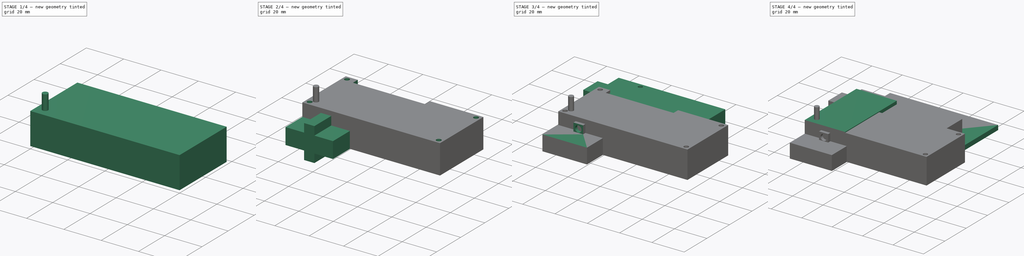
[diagram: build sequence overview — one tinted view per stage of 4, left to right]
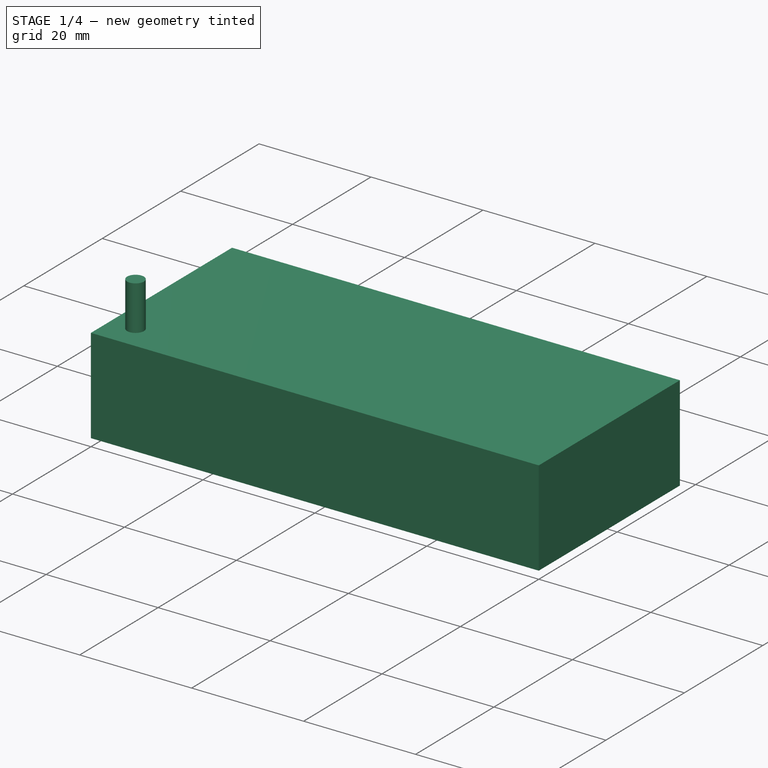
[diagram: stage 1 of 4 — iso view after this stage's code; geometry added in this stage tinted green]
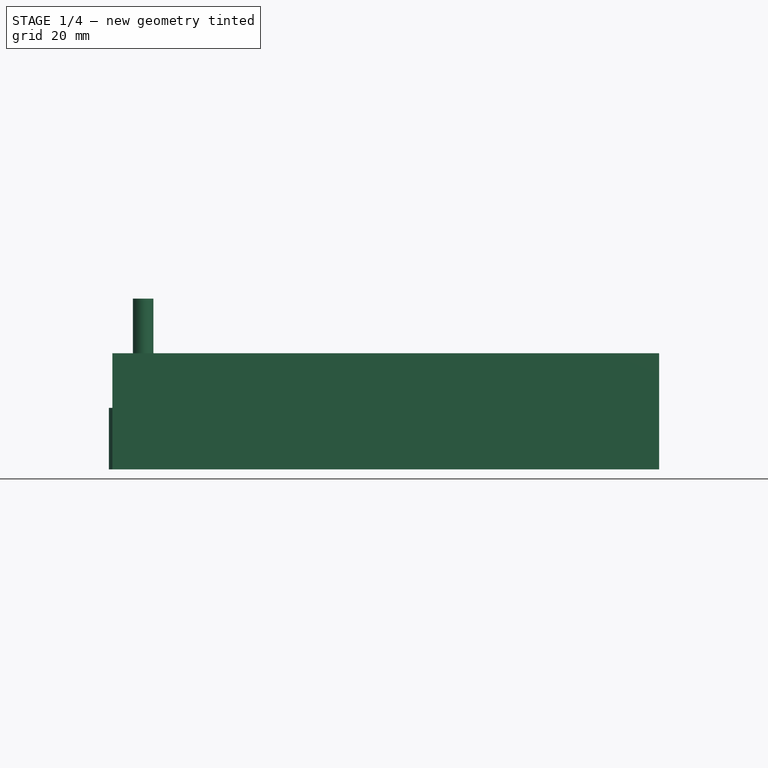
[diagram: stage 1 of 4 — front view after this stage's code; geometry added in this stage tinted green]
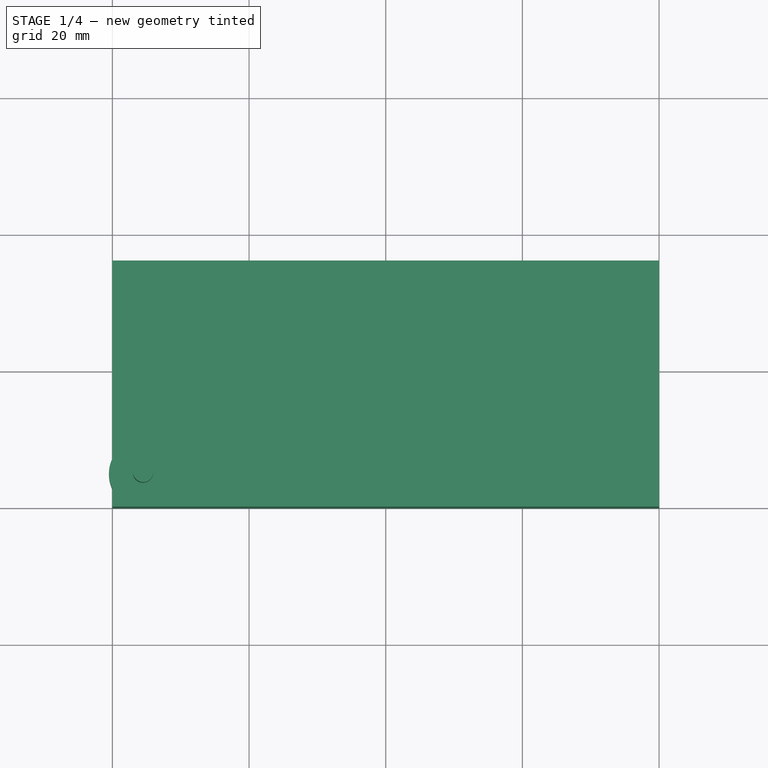
[diagram: stage 1 of 4 — top view after this stage's code; geometry added in this stage tinted green]
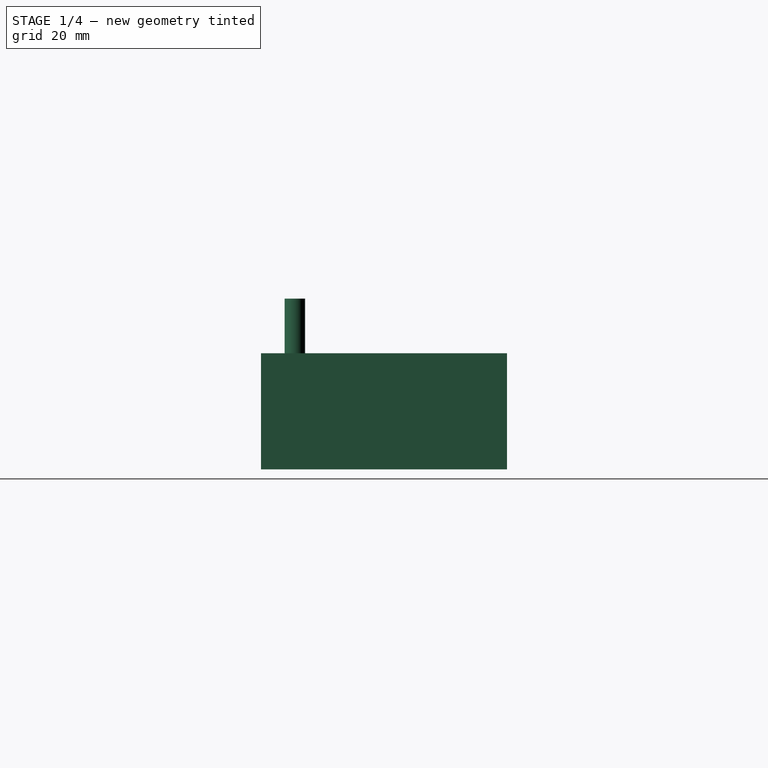
[diagram: stage 1 of 4 — right view after this stage's code; geometry added in this stage tinted green]
FCSTD DOCUMENT  (FreeCAD 1.0R39109 (Git))
Label: Electronic_parts
License: All rights reserved
LicenseURL: https://en.wikipedia.org/wiki/All_rights_reserved
objects: Sketcher::SketchObject×10, PartDesign::Pad×9, PartDesign::Body×6, PartDesign::Pocket×4
note: 65 computed .brp shape members not serialized (recipe doc carries the construction recipe); baked Part::Feature solids carry a one-line shape summary decoded from their .brp

FEATURE [PartDesign::Body] Body004  label="power_switch"
  AllowCompound = false
  Group = -> [Sketch005,Pad006,Sketch006,Pocket,Pocket001]
  Origin = -> Origin004
  Tip = -> Pocket001
FEATURE [Sketcher::SketchObject] Sketch002
  ArcFitTolerance = 1e-06
  AttachmentSupport = -> [XY_Plane002]
  FullyConstrained = true
  MakeInternals = false
  MapMode = 5
  sketch-geometry (4):
    g0: LineSegment StartX=0 StartY=0 StartZ=0 EndX=80 EndY=0 EndZ=0
    g1: LineSegment StartX=80 StartY=0 StartZ=0 EndX=80 EndY=36 EndZ=0
    g2: LineSegment StartX=80 StartY=36 StartZ=0 EndX=0 EndY=36 EndZ=0
    g3: LineSegment StartX=0 StartY=36 StartZ=0 EndX=0 EndY=0 EndZ=0
  constraints (11):
    c: Coincident(g0,g1)
    c: Coincident(g1,g2)
    c: Coincident(g2,g3)
    c: Coincident(g3,g0)
    c: Horizontal(g0)
    c: Horizontal(g2)
    c: Vertical(g1)
    c: Vertical(g3)
    c: Coincident(g0,g-1)
    c: DistanceX(g2,g2) = 80
    c: DistanceY(g1,g1) = 36
FEATURE [PartDesign::Pad] Pad002
  Direction = (0,0,1)
  Length = 17
  Length2 = 10
  Profile = -> Sketch002
  ReferenceAxis = -> Sketch002 [N_Axis]
  Refine = true
  Suppressed = false
  Type = 0
FEATURE [PartDesign::Body] Body002  label="Display"
  AllowCompound = false
  Group = -> [Sketch002,Pad002,Sketch007,Pocket002,Pocket003]
  Origin = -> Origin002
  Tip = -> Pocket003
FEATURE [Sketcher::SketchObject] Sketch008
  ArcFitTolerance = 1e-06
  AttachmentSupport = -> [XY_Plane005]
  FullyConstrained = false
  MakeInternals = false
  MapMode = 5
  sketch-geometry (7):
    g0: ArcOfCircle CenterX=4.5 CenterY=4.95 CenterZ=0 NormalX=0 NormalY=0 NormalZ=1 AngleXU=0 Radius=5.00461 StartAngle=5.83026 EndAngle=9.8777
    g1: LineSegment StartX=0 StartY=2.76 StartZ=0 EndX=0 EndY=0 EndZ=0
    g2: LineSegment StartX=0 StartY=0 StartZ=0 EndX=9 EndY=0 EndZ=0
    g3: LineSegment StartX=9 StartY=0 StartZ=0 EndX=9 EndY=2.76 EndZ=0
    g4: LineSegment [constr] StartX=-0.625057 StartY=10 StartZ=0 EndX=12.7957 EndY=10 EndZ=0
    g5: LineSegment [constr] StartX=-0.511317 StartY=11.1307 StartZ=0 EndX=-0.511317 EndY=0 EndZ=0
    g6: LineSegment [constr] StartX=9.48868 StartY=10.8826 StartZ=0 EndX=9.48868 EndY=0 EndZ=0
  constraints (20):
    c: Horizontal(g0,g0)
    c: Coincident(g1,g2)
    c: Coincident(g2,g3)
    c: Vertical(g1)
    c: Vertical(g3)
    c: Horizontal(g2)
    c: DistanceX(g2,g2) = 9
    c: Horizontal(g4)
    c: Distance(g2,g4) = 10
    c: Coincident(g1,g-1)
    c: Horizontal(g1,g3)
    c: Coincident(g0,g3)
    c: Vertical(g0,g1)
    c: PointOnObject(g5,g-1)
    c: Vertical(g5)
    c: PointOnObject(g6,g-1)
    c: Vertical(g6)
    c: DistanceX(g5,g6) = 10
    c: DistanceY(g-1,g0) = 2.76
    c: DistanceY(g-1,g0) = 4.95
FEATURE [PartDesign::Pad] Pad007
  Direction = (0,0,1)
  Length = 9
  Length2 = 10
  Profile = -> Sketch008
  ReferenceAxis = -> Sketch008 [N_Axis]
  Refine = true
  Suppressed = false
  Type = 0
FEATURE [Sketcher::SketchObject] Sketch009
  ArcFitTolerance = 1e-06
  AttachmentSupport = -> [Pad007]
  ExternalGeometry = -> [Pad007]
  FullyConstrained = true
  MakeInternals = false
  MapMode = 5
  Placement = pos=(0,0,9) rot=(0,0,1;0rad)
  sketch-geometry (1):
    g0: Circle CenterX=4.5 CenterY=4.95 CenterZ=0 NormalX=0 NormalY=0 NormalZ=1 AngleXU=0 Radius=1.5
  constraints (2):
    c: Coincident(g0,g-3)
    c: Radius(g0) = 1.5
FEATURE [PartDesign::Pad] Pad008
  BaseFeature = -> Pad007
  Direction = (0,0,1)
  Length = 16
  Length2 = 10
  Profile = -> Sketch009
  ReferenceAxis = -> Sketch009 [N_Axis]
  Refine = true
  Suppressed = false
  Type = 0
FEATURE [PartDesign::Body] Body005  label="poti"
  AllowCompound = false
  Group = -> [Sketch008,Pad007,Sketch009,Pad008]
  Origin = -> Origin005
  Tip = -> Pad008
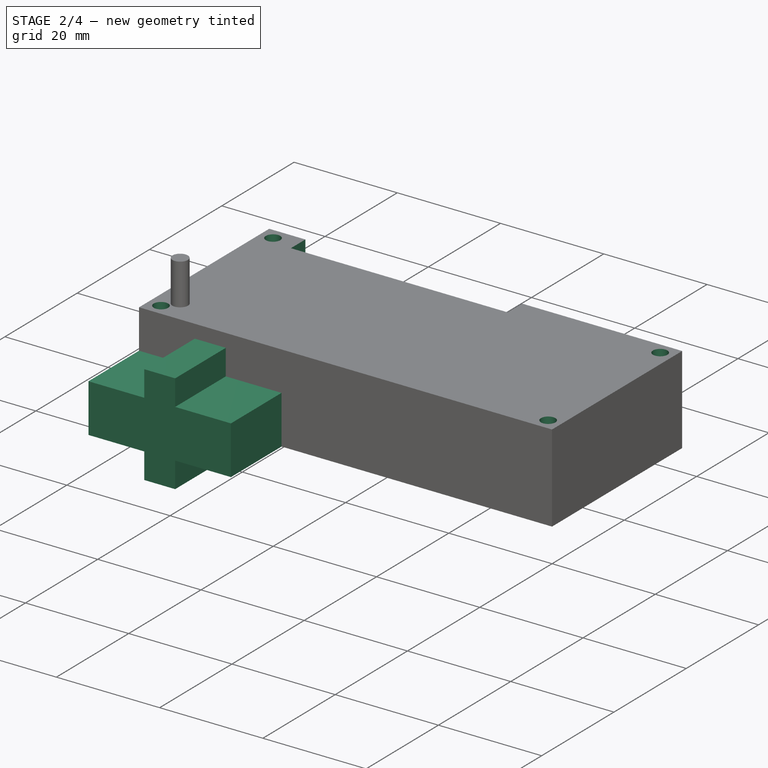
[diagram: stage 2 of 4 — iso view after this stage's code; geometry added in this stage tinted green]
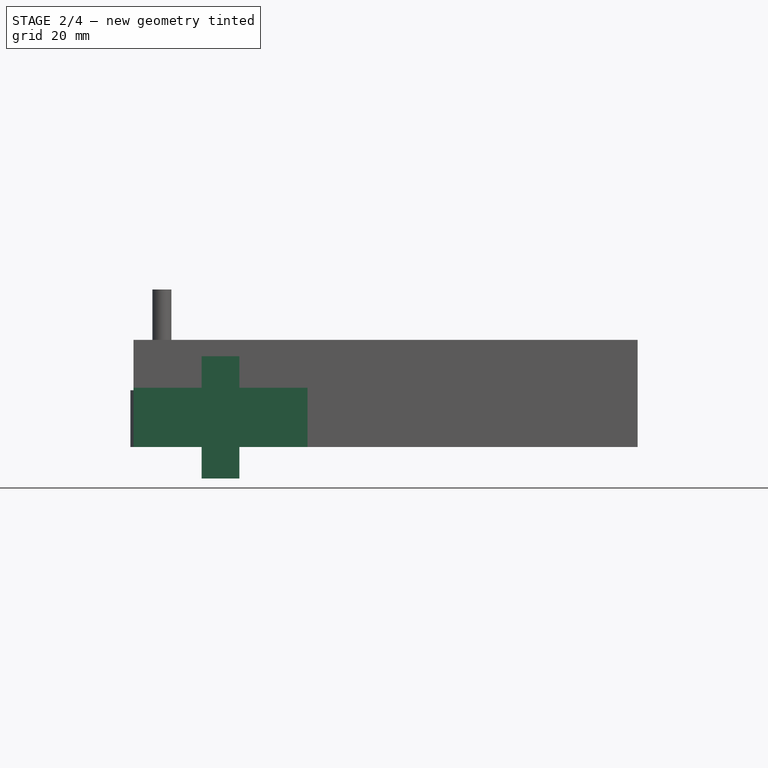
[diagram: stage 2 of 4 — front view after this stage's code; geometry added in this stage tinted green]
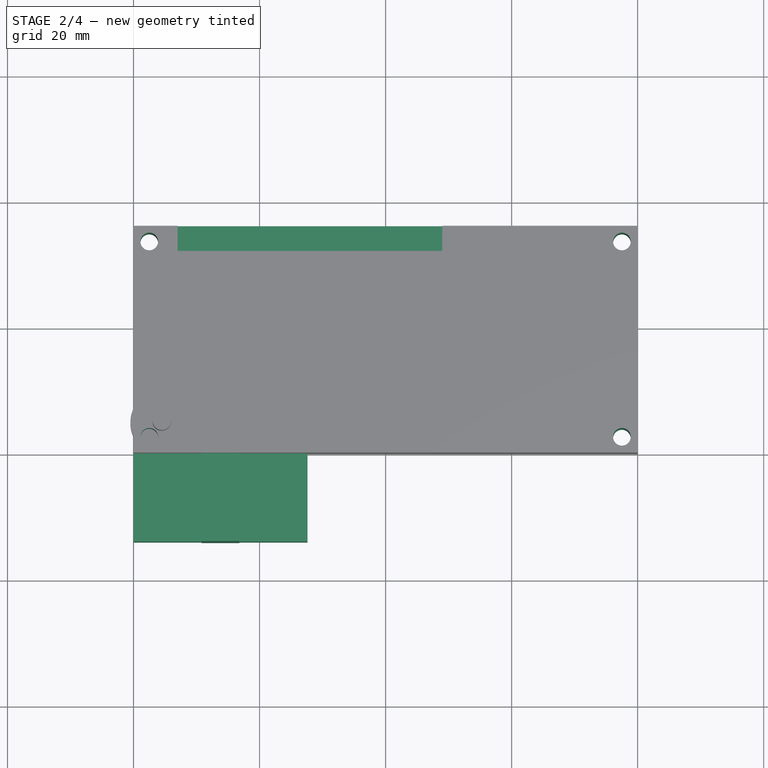
[diagram: stage 2 of 4 — top view after this stage's code; geometry added in this stage tinted green]
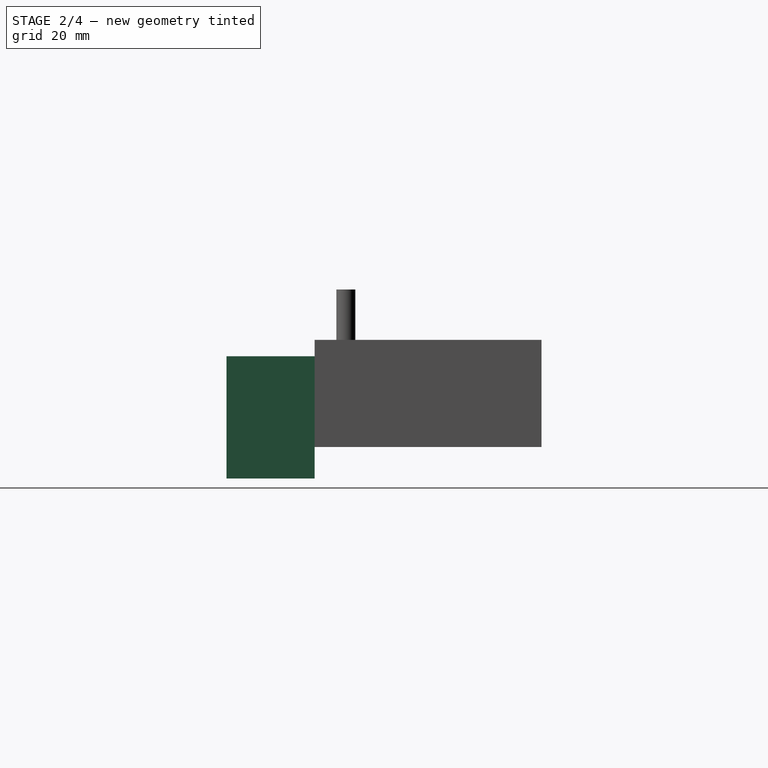
[diagram: stage 2 of 4 — right view after this stage's code; geometry added in this stage tinted green]
FEATURE [PartDesign::Body] Body003  label="Eleego"
  AllowCompound = false
  Group = -> [Sketch003,Pad003,Sketch004,Pad004,Pad005]
  Origin = -> Origin003
  Tip = -> Pad005
FEATURE [Sketcher::SketchObject] Sketch005
  ArcFitTolerance = 1e-06
  AttachmentSupport = -> [XZ_Plane004]
  FullyConstrained = true
  MakeInternals = false
  MapMode = 5
  Placement = pos=(0,0,0) rot=(1,0,0;1.5708rad)
  sketch-geometry (12):
    g0: LineSegment StartX=0 StartY=9.4 StartZ=0 EndX=10.8 EndY=9.4 EndZ=0
    g1: LineSegment StartX=10.8 StartY=9.4 StartZ=0 EndX=10.8 EndY=14.4 EndZ=0
    g2: LineSegment StartX=10.8 StartY=14.4 StartZ=0 EndX=16.8 EndY=14.4 EndZ=0
    g3: LineSegment StartX=16.8 StartY=14.4 StartZ=0 EndX=16.8 EndY=9.4 EndZ=0
    g4: LineSegment StartX=16.8 StartY=9.4 StartZ=0 EndX=27.6 EndY=9.4 EndZ=0
    g5: LineSegment StartX=27.6 StartY=9.4 StartZ=0 EndX=27.6 EndY=0 EndZ=0
    g6: LineSegment StartX=27.6 StartY=0 StartZ=0 EndX=16.8 EndY=0 EndZ=0
    g7: LineSegment StartX=16.8 StartY=0 StartZ=0 EndX=16.8 EndY=-5 EndZ=0
    g8: LineSegment StartX=16.8 StartY=-5 StartZ=0 EndX=10.8 EndY=-5 EndZ=0
    g9: LineSegment StartX=10.8 StartY=-5 StartZ=0 EndX=10.8 EndY=0 EndZ=0
    g10: LineSegment StartX=10.8 StartY=0 StartZ=0 EndX=0 EndY=0 EndZ=0
    g11: LineSegment StartX=0 StartY=0 StartZ=0 EndX=0 EndY=9.4 EndZ=0
  constraints (36):
    c: PointOnObject(g0,g-2)
    c: Horizontal(g0)
    c: Coincident(g0,g1)
    c: Vertical(g1)
    c: Coincident(g1,g2)
    c: Horizontal(g2)
    c: Coincident(g2,g3)
    c: Vertical(g3)
    c: Coincident(g3,g4)
    c: Horizontal(g4)
    c: Coincident(g4,g5)
    c: Vertical(g5)
    c: Coincident(g5,g6)
    c: Horizontal(g6)
    c: Coincident(g6,g7)
    c: Vertical(g7)
    c: Coincident(g7,g8)
    c: Horizontal(g8)
    c: Coincident(g8,g9)
    c: Vertical(g9)
    c: Coincident(g9,g10)
    c: PointOnObject(g10,g-2)
    c: Horizontal(g10)
    c: Coincident(g10,g11)
    c: Coincident(g11,g0)
    c: Vertical(g0,g9)
    c: Vertical(g3,g6)
    c: Horizontal(g6,g9)
    c: Horizontal(g0,g3)
    c: Distance(g8,g2) = 19.4
    c: DistanceX(g2,g2) = 6
    c: Distance(g11,g5) = 27.6
    c: Equal(g4,g0)
    c: Equal(g9,g1)
    c: DistanceY(g11,g11) = 9.4
    c: Horizontal(g10,g-1)
FEATURE [PartDesign::Pad] Pad006
  Direction = (0,-1,2e-16)
  Length = 14
  Length2 = 10
  Placement = pos=(0,0,0) rot=(1,0,0;1.5708rad)
  Profile = -> Sketch005
  ReferenceAxis = -> Sketch005 [N_Axis]
  Refine = true
  Suppressed = false
  Type = 0
FEATURE [Sketcher::SketchObject] Sketch007
  ArcFitTolerance = 1e-06
  AttachmentSupport = -> [Pad002]
  ExternalGeometry = -> [Pad002]
  FullyConstrained = true
  MakeInternals = false
  MapMode = 5
  Placement = pos=(0,0,17) rot=(0,0,1;0rad)
  sketch-geometry (8):
    g0: Circle CenterX=2.5 CenterY=33.5 CenterZ=0 NormalX=0 NormalY=0 NormalZ=1 AngleXU=0 Radius=1.4
    g1: Circle CenterX=77.5 CenterY=33.5 CenterZ=0 NormalX=0 NormalY=0 NormalZ=1 AngleXU=0 Radius=1.4
    g2: Circle CenterX=2.5 CenterY=2.5 CenterZ=0 NormalX=0 NormalY=0 NormalZ=1 AngleXU=0 Radius=1.4
    g3: Circle CenterX=77.5 CenterY=2.5 CenterZ=0 NormalX=0 NormalY=0 NormalZ=1 AngleXU=0 Radius=1.4
    g4: LineSegment StartX=7 StartY=36 StartZ=0 EndX=7 EndY=32 EndZ=0
    g5: LineSegment StartX=7 StartY=32 StartZ=0 EndX=49 EndY=32 EndZ=0
    g6: LineSegment StartX=49 StartY=32 StartZ=0 EndX=49 EndY=36 EndZ=0
    g7: LineSegment StartX=49 StartY=36 StartZ=0 EndX=7 EndY=36 EndZ=0
  constraints (24):
    c: Radius(g3) = 1.4
    c: Equal(g1,g3)
    c: Equal(g3,g0)
    c: Equal(g0,g2)
    c: Distance(g0,g-3) = 2.5
    c: Distance(g0,g-6) = 2.5
    c: Distance(g1,g-3) = 2.5
    c: Distance(g1,g-4) = 2.5
    c: Distance(g3,g-4) = 2.5
    c: Distance(g3,g-5) = 2.5
    c: Distance(g2,g-5) = 2.5
    c: Distance(g2,g-6) = 2.5
    c: Coincident(g4,g5)
    c: Coincident(g5,g6)
    c: Coincident(g6,g7)
    c: Coincident(g7,g4)
    c: Vertical(g4)
    c: Vertical(g6)
    c: Horizontal(g5)
    c: Horizontal(g7)
    c: PointOnObject(g4,g-3)
    c: DistanceX(g7,g7) = 42
    c: Distance(g-6,g4) = 7
    c: Distance(g6,g6) = 4
FEATURE [PartDesign::Pocket] Pocket002
  BaseFeature = -> Pad002
  Direction = (0,0,-1)
  Length = 5
  Length2 = 5
  Profile = -> Sketch007 [Edge8,Edge7,Edge6,Edge5]
  ReferenceAxis = -> Sketch007 [N_Axis]
  Refine = true
  Suppressed = false
  Type = 0
FEATURE [PartDesign::Pocket] Pocket003
  BaseFeature = -> Pocket002
  Direction = (0,0,-1)
  Length = 0
  Length2 = 5
  Profile = -> Sketch007 [Edge2,Edge4,Edge3,Edge1]
  ReferenceAxis = -> Sketch007 [N_Axis]
  Refine = true
  Suppressed = false
  Type = 3
  UpToFace = -> Pocket002 [Face4]
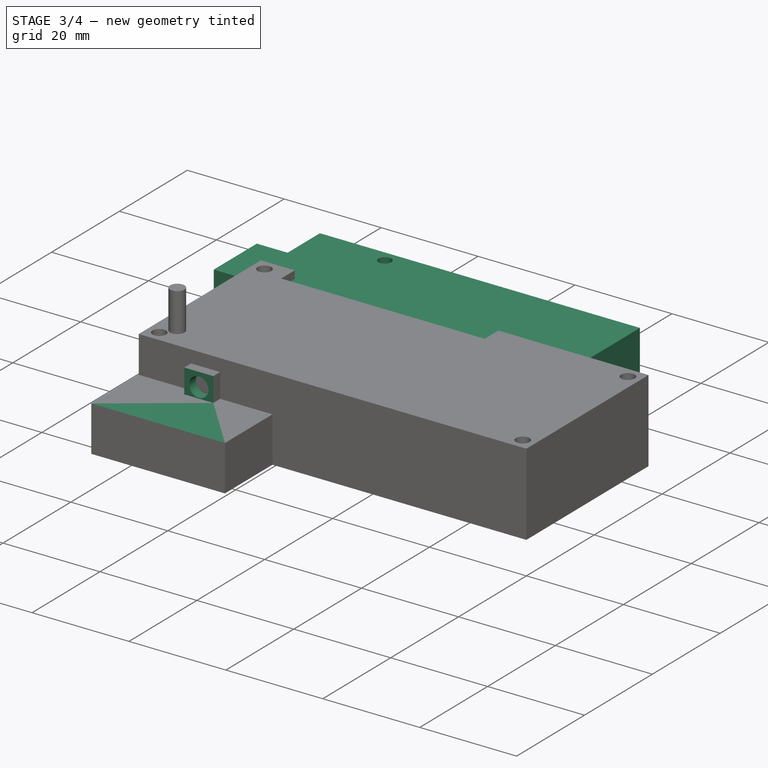
[diagram: stage 3 of 4 — iso view after this stage's code; geometry added in this stage tinted green]
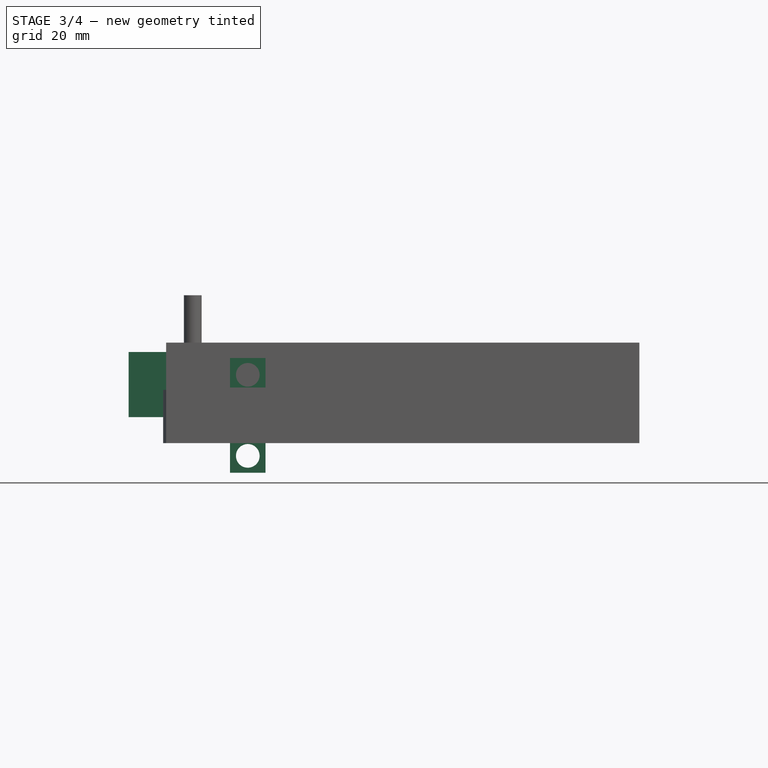
[diagram: stage 3 of 4 — front view after this stage's code; geometry added in this stage tinted green]
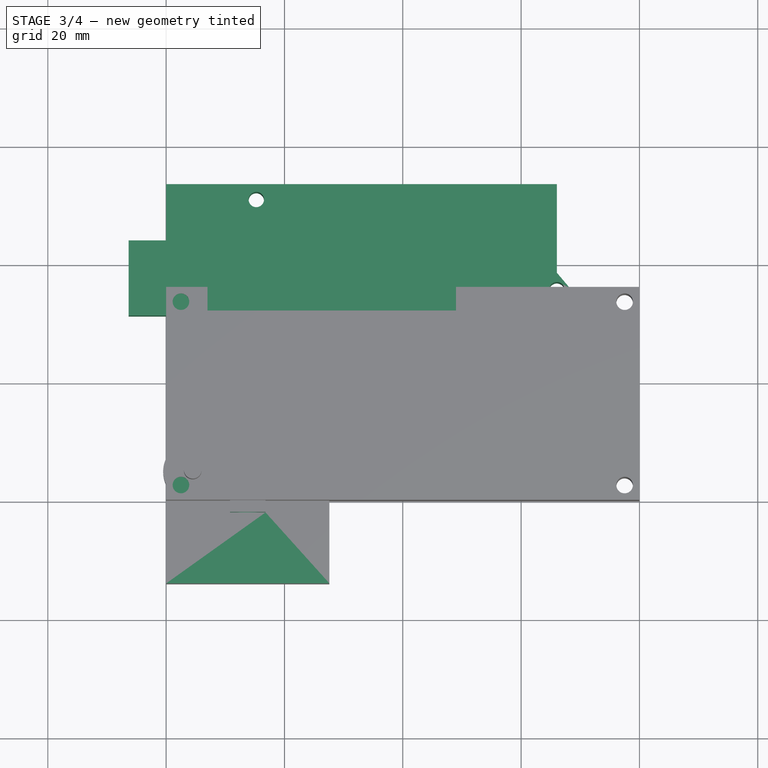
[diagram: stage 3 of 4 — top view after this stage's code; geometry added in this stage tinted green]
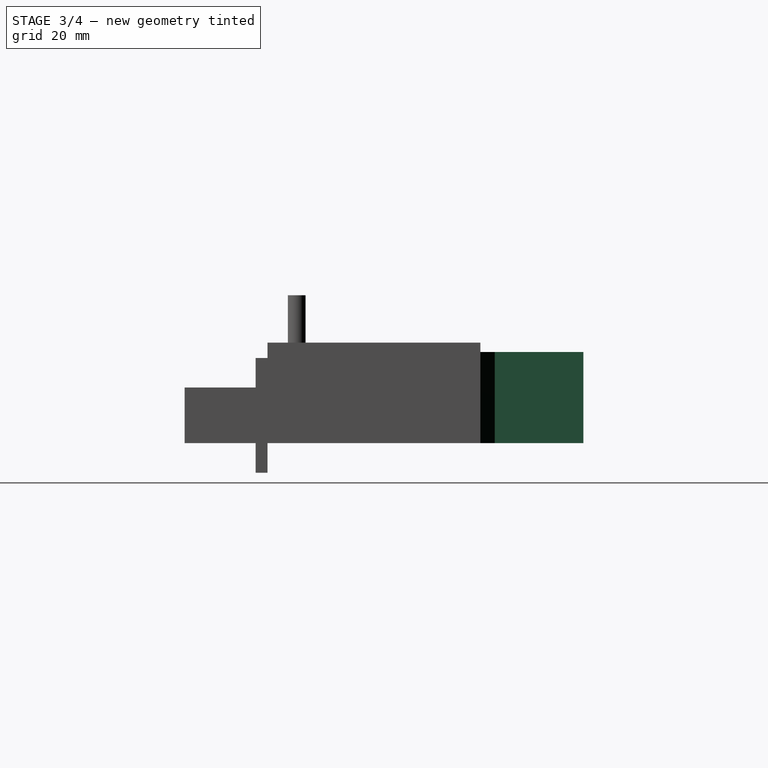
[diagram: stage 3 of 4 — right view after this stage's code; geometry added in this stage tinted green]
FEATURE [PartDesign::Body] Body001  label="Keypad"
  AllowCompound = false
  Group = -> [Sketch001,Pad001]
  Origin = -> Origin001
  Tip = -> Pad001
FEATURE [Sketcher::SketchObject] Sketch003
  ArcFitTolerance = 1e-06
  AttachmentSupport = -> [XY_Plane003]
  FullyConstrained = true
  MakeInternals = false
  MapMode = 5
  sketch-geometry (11):
    g0: LineSegment StartX=0 StartY=53.4 StartZ=0 EndX=66.04 EndY=53.4 EndZ=0
    g1: LineSegment StartX=66.04 StartY=53.4 StartZ=0 EndX=66.04 EndY=38.42 EndZ=0
    g2: LineSegment StartX=66.04 StartY=38.42 StartZ=0 EndX=68.2 EndY=35.88 EndZ=0
    g3: LineSegment StartX=68.2 StartY=35.88 StartZ=0 EndX=68.2 EndY=5.62 EndZ=0
    g4: LineSegment StartX=68.2 StartY=5.62 StartZ=0 EndX=66.04 EndY=0 EndZ=0
    g5: LineSegment StartX=66.04 StartY=0 StartZ=0 EndX=0 EndY=0 EndZ=0
    g6: LineSegment StartX=0 StartY=0 StartZ=0 EndX=0 EndY=53.4 EndZ=0
    g7: Circle CenterX=15.24 CenterY=50.8 CenterZ=0 NormalX=0 NormalY=0 NormalZ=1 AngleXU=0 Radius=1.3
    g8: Circle CenterX=66.04 CenterY=35.56 CenterZ=0 NormalX=0 NormalY=0 NormalZ=1 AngleXU=0 Radius=1.3
    g9: Circle CenterX=66.04 CenterY=7.62 CenterZ=0 NormalX=0 NormalY=0 NormalZ=1 AngleXU=0 Radius=1.3
    g10: Circle CenterX=13.97 CenterY=2.54 CenterZ=0 NormalX=0 NormalY=0 NormalZ=1 AngleXU=0 Radius=1.3
  constraints (32):
    c: Coincident(g0,g1)
    c: Coincident(g1,g2)
    c: Coincident(g2,g3)
    c: Vertical(g3)
    c: Coincident(g3,g4)
    c: Coincident(g4,g5)
    c: Horizontal(g5)
    c: Coincident(g5,g6)
    c: Coincident(g6,g0)
    c: Vertical(g6)
    c: DistanceX(g5,g5) = 66.04
    c: Parallel(g1,g6)
    c: Parallel(g0,g5)
    c: Distance(g3,g6) = 68.2
    c: DistanceY(g6,g6) = 53.4
    c: Equal(g0,g5)
    c: Coincident(g5,g-1)
    c: DistanceY(g3,g3) = 30.26
    c: DistanceY(g1,g1) = 14.98
    c: DistanceY(g2,g1) = 2.54
    c: Distance(g10,g5) = 2.54
    c: Distance(g10,g6) = 13.97
    c: Distance(g9,g6) = 66.04
    c: Distance(g9,g5) = 7.62
    c: Vertical(g8,g9)
    c: Distance(g8,g5) = 35.56
    c: Distance(g7,g6) = 15.24
    c: Distance(g7,g5) = 50.8
    c: Radius(g7) = 1.3
    c: Equal(g7,g8)
    c: Equal(g9,g10)
    c: Equal(g8,g9)
FEATURE [PartDesign::Pad] Pad003
  Direction = (0,0,1)
  Length = 15.4
  Length2 = 10
  Profile = -> Sketch003
  ReferenceAxis = -> Sketch003 [N_Axis]
  Refine = true
  Suppressed = false
  Type = 0
FEATURE [Sketcher::SketchObject] Sketch004
  ArcFitTolerance = 1e-06
  AttachmentSupport = -> [Pad003]
  ExternalGeometry = -> [Pad003]
  FullyConstrained = true
  MakeInternals = false
  MapMode = 5
  Placement = pos=(0,0,0) rot=(0.57735,-0.57735,-0.57735;2.0944rad)
  sketch-geometry (5):
    g0: LineSegment StartX=-43.88 StartY=15.4 StartZ=0 EndX=-43.88 EndY=4.4 EndZ=0
    g1: LineSegment StartX=-43.88 StartY=4.4 StartZ=0 EndX=-31.18 EndY=4.4 EndZ=0
    g2: LineSegment StartX=-31.18 StartY=4.4 StartZ=0 EndX=-31.18 EndY=15.4 EndZ=0
    g3: LineSegment StartX=-31.18 StartY=15.4 StartZ=0 EndX=-43.88 EndY=15.4 EndZ=0
    g4: Circle CenterX=-7.86 CenterY=4.8 CenterZ=0 NormalX=0 NormalY=0 NormalZ=1 AngleXU=0 Radius=4.76
  constraints (15):
    c: Coincident(g0,g1)
    c: Coincident(g1,g2)
    c: Coincident(g2,g3)
    c: Coincident(g3,g0)
    c: Vertical(g0)
    c: Vertical(g2)
    c: Horizontal(g1)
    c: Horizontal(g3)
    c: DistanceY(g0,g0) = 11
    c: DistanceX(g1,g1) = 12.7
    c: Distance(g-4,g0) = 9.52
    c: Distance(g-1,g3) = 15.4
    c: Diameter(g4) = 9.52
    c: Distance(g4,g-2) = 7.86
    c: Distance(g4,g-1) = 4.8
FEATURE [PartDesign::Pad] Pad004
  BaseFeature = -> Pad003
  Direction = (-1,0,0)
  Length = 6.35
  Length2 = 10
  Profile = -> Sketch004 [Edge2,Edge4,Edge1,Edge3]
  ReferenceAxis = -> Sketch004 [N_Axis]
  Refine = true
  Suppressed = false
  Type = 0
FEATURE [Sketcher::SketchObject] Sketch006
  ArcFitTolerance = 1e-06
  AttachmentSupport = -> [Pad006]
  ExternalGeometry = -> [Pad006]
  FullyConstrained = true
  MakeInternals = false
  MapMode = 5
  Placement = pos=(0,-14,0) rot=(1,0,0;1.5708rad)
  sketch-geometry (12):
    g0: LineSegment StartX=10.8 StartY=-5 StartZ=0 EndX=16.8 EndY=-5 EndZ=0
    g1: LineSegment StartX=16.8 StartY=-5 StartZ=0 EndX=16.8 EndY=3.6e-15 EndZ=0
    g2: LineSegment StartX=16.8 StartY=3.6e-15 StartZ=0 EndX=10.8 EndY=3.6e-15 EndZ=0
    g3: LineSegment [constr] StartX=10.8 StartY=11.55 StartZ=0 EndX=13.8 EndY=11.55 EndZ=0
    g4: LineSegment [constr] StartX=13.8 StartY=11.55 StartZ=0 EndX=16.8 EndY=11.55 EndZ=0
    g5: Circle CenterX=13.8 CenterY=11.55 CenterZ=0 NormalX=0 NormalY=0 NormalZ=1 AngleXU=0 Radius=2
    g6: LineSegment StartX=10.8 StartY=9.4 StartZ=0 EndX=16.8 EndY=9.4 EndZ=0
    g7: LineSegment StartX=16.8 StartY=14.4 StartZ=0 EndX=10.8 EndY=14.4 EndZ=0
    g8: Circle CenterX=13.8 CenterY=-2.15 CenterZ=0 NormalX=0 NormalY=0 NormalZ=1 AngleXU=0 Radius=2
    g9: LineSegment StartX=10.8 StartY=14.4 StartZ=0 EndX=10.8 EndY=9.4 EndZ=0
    g10: LineSegment StartX=16.8 StartY=9.4 StartZ=0 EndX=16.8 EndY=14.4 EndZ=0
    g11: LineSegment StartX=10.8 StartY=3.6e-15 StartZ=0 EndX=10.8 EndY=-5 EndZ=0
  constraints (32):
    c: Coincident(g0,g1)
    c: Coincident(g1,g2)
    c: Vertical(g1)
    c: Horizontal(g0)
    c: Horizontal(g2)
    c: Coincident(g0,g-3)
    c: Horizontal(g3)
    c: Coincident(g4,g3)
    c: Horizontal(g4)
    c: Vertical(g4,g-7)
    c: Equal(g4,g3)
    c: Coincident(g5,g3)
    c: Horizontal(g6)
    c: Horizontal(g7)
    c: Coincident(g6,g-7)
    c: Radius(g5) = 2
    c: Vertical(g3,g8)
    c: Coincident(g2,g-5)
    c: Radius(g8) = 2
    c: Distance(g7,g4) = 2.85
    c: Coincident(g-6,g7)
    c: Coincident(g9,g7)
    c: Coincident(g9,g6)
    c: Vertical(g9)
    c: Coincident(g10,g6)
    c: Coincident(g10,g7)
    c: Vertical(g3,g7)
    c: Vertical(g-9,g7)
    c: Distance(g8,g0) = 2.85
    c: Coincident(g11,g2)
    c: Coincident(g11,g0)
    c: Vertical(g11)
FEATURE [PartDesign::Pocket] Pocket
  BaseFeature = -> Pad006
  Direction = (0,1,-2e-16)
  Length = 12
  Length2 = 5
  Placement = pos=(0,0,0) rot=(1,0,0;1.5708rad)
  Profile = -> Sketch006
  ReferenceAxis = -> Sketch006 [N_Axis]
  Refine = true
  Suppressed = false
  Type = 0
FEATURE [PartDesign::Pocket] Pocket001
  BaseFeature = -> Pocket
  Direction = (0,1,-2e-16)
  Length = 0
  Length2 = 5
  Placement = pos=(0,0,0) rot=(1,0,0;1.5708rad)
  Profile = -> Sketch006 [Edge5,Edge10]
  ReferenceAxis = -> Sketch006 [N_Axis]
  Refine = true
  Suppressed = false
  Type = 3
  UpToFace = -> Pocket [Face2]
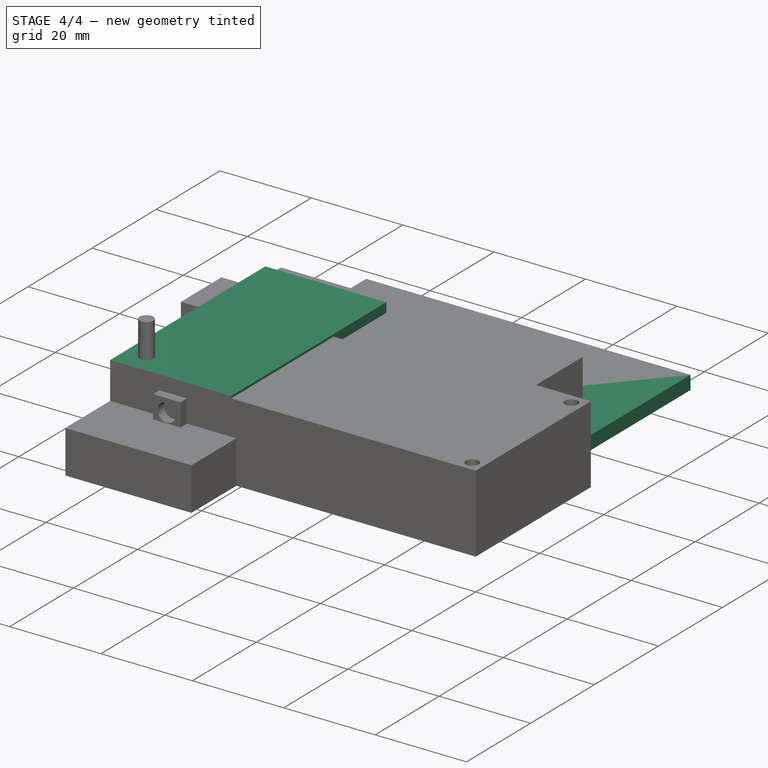
[diagram: stage 4 of 4 — iso view after this stage's code; geometry added in this stage tinted green]
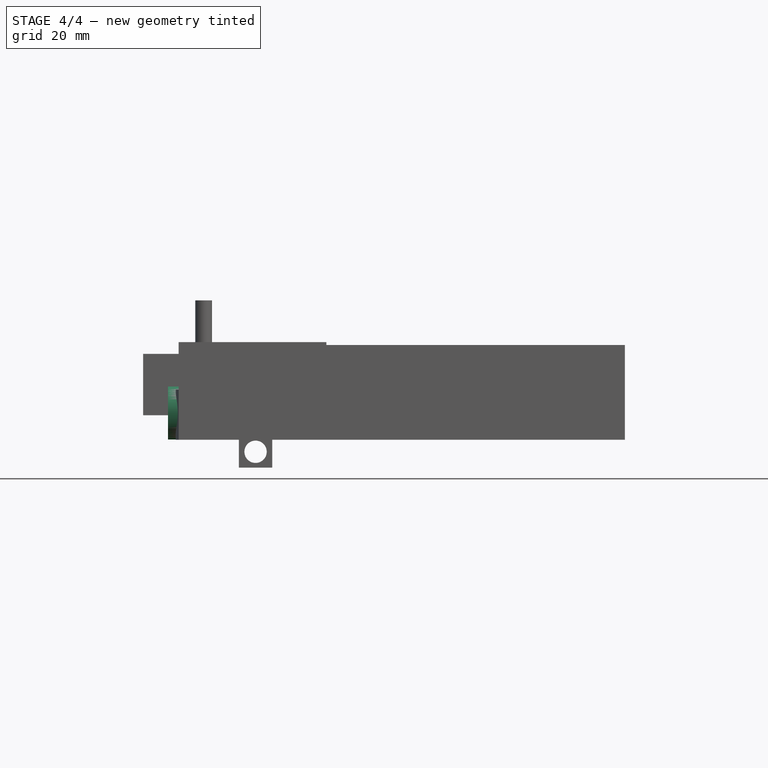
[diagram: stage 4 of 4 — front view after this stage's code; geometry added in this stage tinted green]
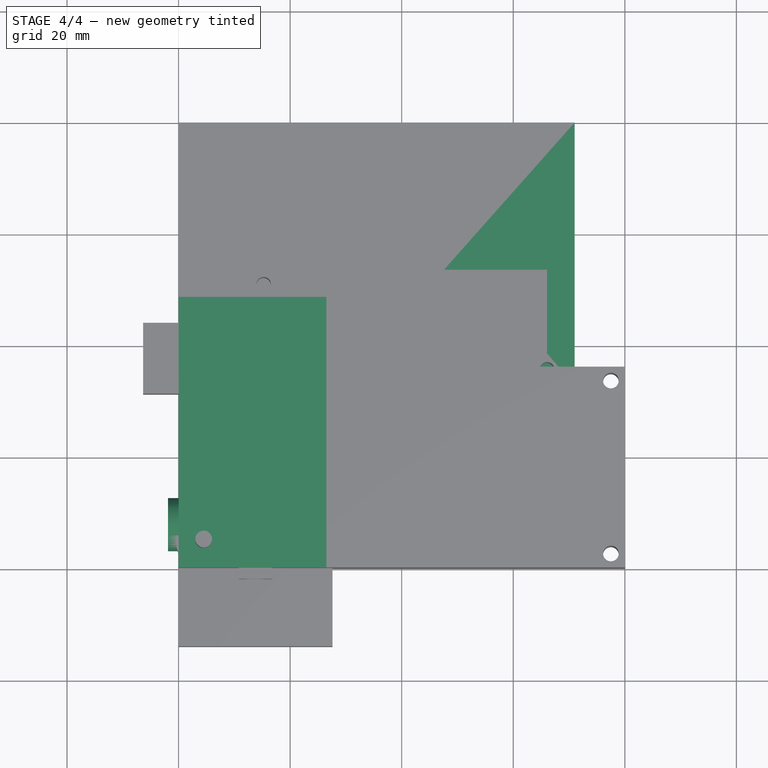
[diagram: stage 4 of 4 — top view after this stage's code; geometry added in this stage tinted green]
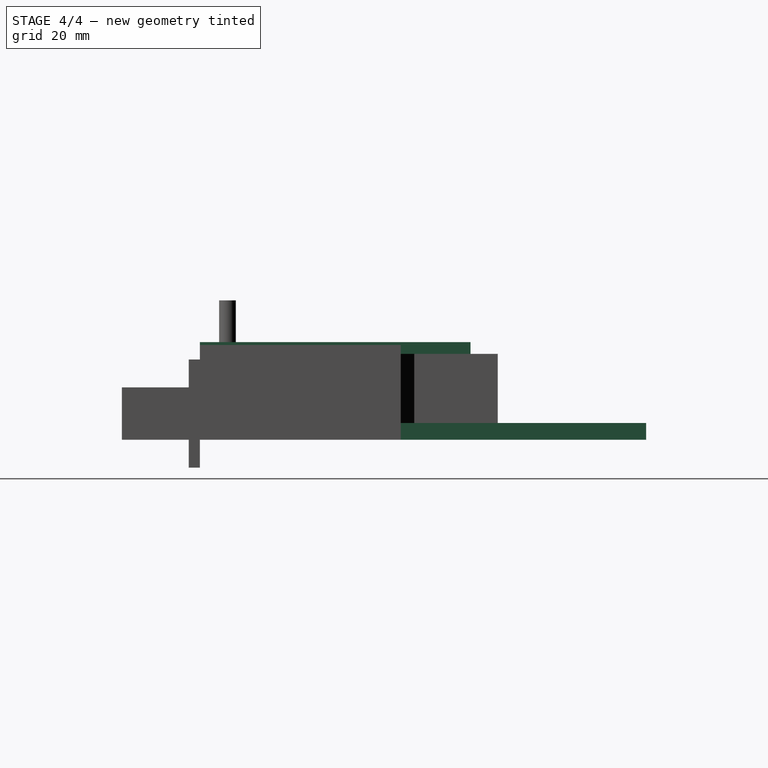
[diagram: stage 4 of 4 — right view after this stage's code; geometry added in this stage tinted green]
FEATURE [Sketcher::SketchObject] Sketch
  ArcFitTolerance = 1e-06
  AttachmentSupport = -> [XY_Plane]
  FullyConstrained = true
  MakeInternals = false
  MapMode = 5
  sketch-geometry (4):
    g0: LineSegment StartX=0 StartY=0 StartZ=0 EndX=26.5 EndY=0 EndZ=0
    g1: LineSegment StartX=26.5 StartY=0 StartZ=0 EndX=26.5 EndY=48.5 EndZ=0
    g2: LineSegment StartX=26.5 StartY=48.5 StartZ=0 EndX=0 EndY=48.5 EndZ=0
    g3: LineSegment StartX=0 StartY=48.5 StartZ=0 EndX=0 EndY=0 EndZ=0
  constraints (11):
    c: Coincident(g0,g1)
    c: Coincident(g1,g2)
    c: Coincident(g2,g3)
    c: Coincident(g3,g0)
    c: Horizontal(g0)
    c: Horizontal(g2)
    c: Vertical(g1)
    c: Vertical(g3)
    c: Coincident(g0,g-1)
    c: DistanceY(g1,g1) = 48.5
    c: DistanceX(g2,g2) = 26.5
FEATURE [PartDesign::Pad] Pad
  Direction = (0,0,1)
  Length = 17.5
  Length2 = 10
  Profile = -> Sketch
  ReferenceAxis = -> Sketch [N_Axis]
  Refine = true
  Suppressed = false
  Type = 0
FEATURE [PartDesign::Body] Body  label="9V_Block"
  AllowCompound = false
  Group = -> [Sketch,Pad]
  Origin = -> Origin
  Tip = -> Pad
FEATURE [Sketcher::SketchObject] Sketch001
  ArcFitTolerance = 1e-06
  AttachmentSupport = -> [XY_Plane001]
  FullyConstrained = true
  MakeInternals = false
  MapMode = 5
  sketch-geometry (4):
    g0: LineSegment StartX=0 StartY=80 StartZ=0 EndX=0 EndY=0 EndZ=0
    g1: LineSegment StartX=0 StartY=0 StartZ=0 EndX=71 EndY=0 EndZ=0
    g2: LineSegment StartX=71 StartY=0 StartZ=0 EndX=71 EndY=80 EndZ=0
    g3: LineSegment StartX=71 StartY=80 StartZ=0 EndX=0 EndY=80 EndZ=0
  constraints (12):
    c: Coincident(g0,g1)
    c: Coincident(g1,g2)
    c: Coincident(g2,g3)
    c: Coincident(g3,g0)
    c: Vertical(g0)
    c: Vertical(g2)
    c: Horizontal(g1)
    c: Horizontal(g3)
    c: PointOnObject(g0,g-2)
    c: PointOnObject(g1,g-1)
    c: Distance(g3,g3) = 71
    c: DistanceY(g2,g2) = 80
FEATURE [PartDesign::Pad] Pad001
  Direction = (0,0,1)
  Length = 3
  Length2 = 10
  Profile = -> Sketch001
  ReferenceAxis = -> Sketch001 [N_Axis]
  Refine = true
  Suppressed = false
  Type = 0
FEATURE [PartDesign::Pad] Pad005
  BaseFeature = -> Pad004
  Direction = (-1,0,0)
  Length = 1.9
  Length2 = 10
  Profile = -> Sketch004 [Edge5]
  ReferenceAxis = -> Sketch004 [N_Axis]
  Refine = true
  Suppressed = false
  Type = 0
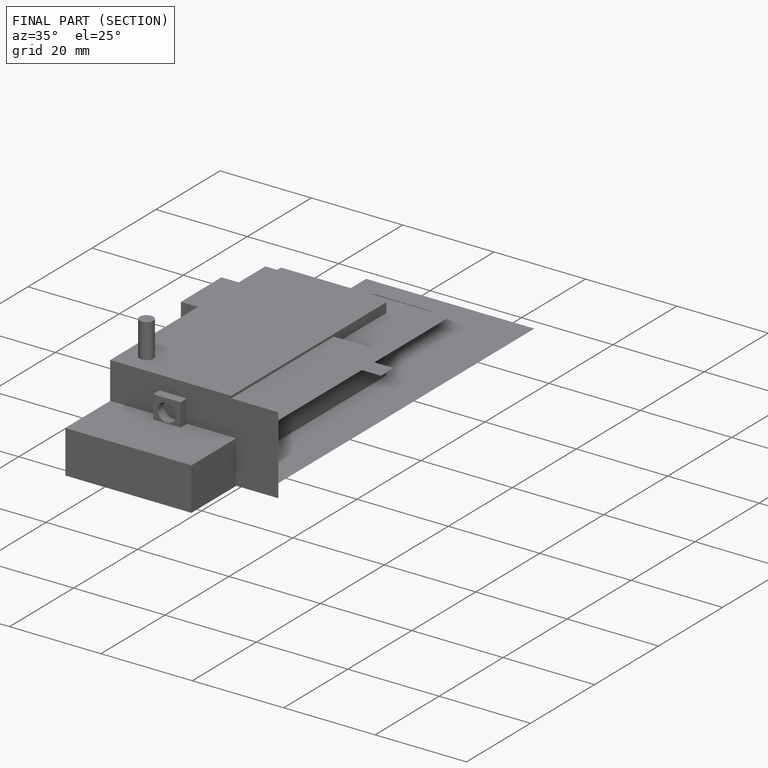
[diagram: finished part — half-section view (interior)]
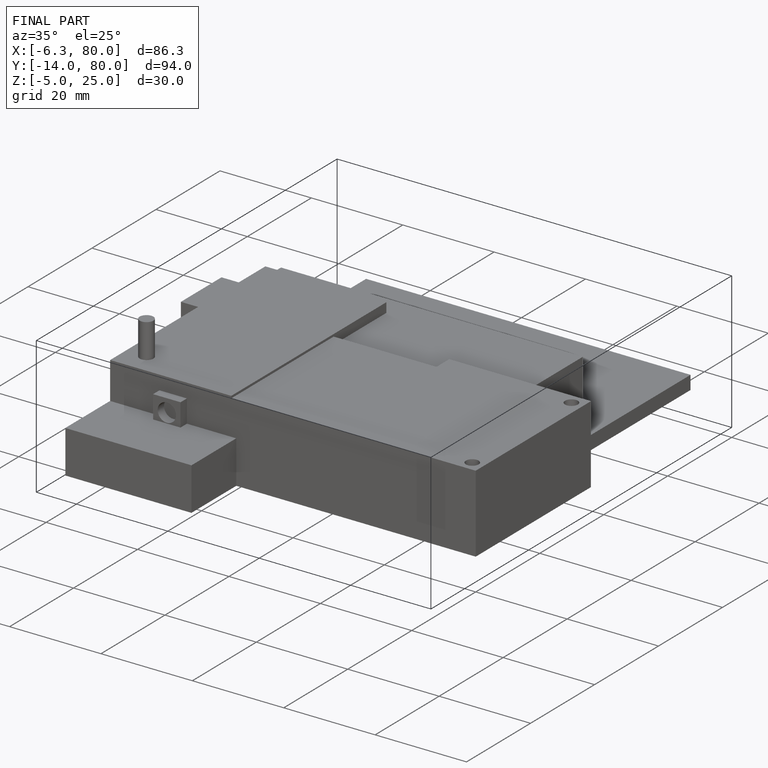
[diagram: finished part — iso view with bounding-box wireframe]
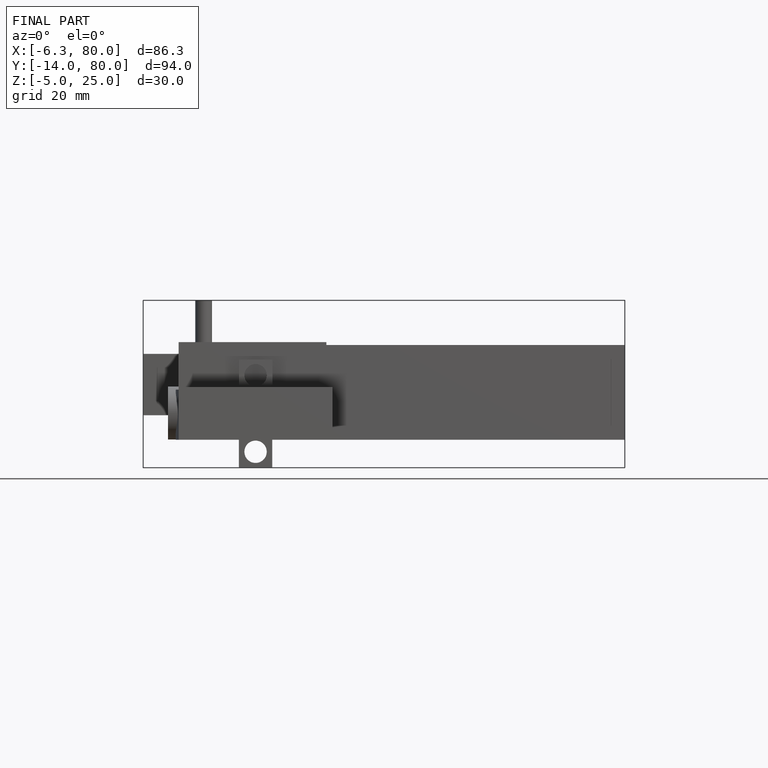
[diagram: finished part — front view with bounding-box wireframe]
